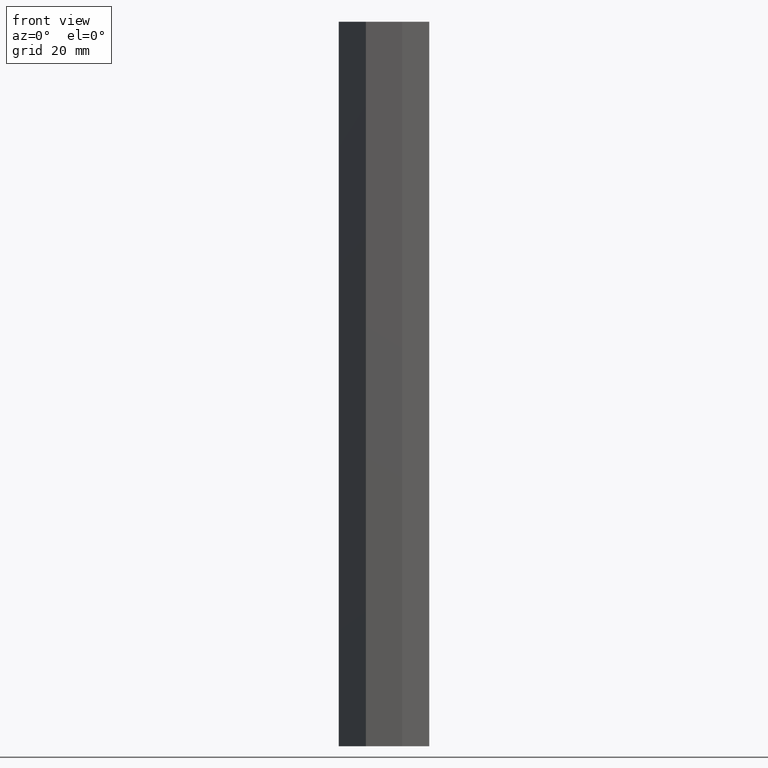
[diagram: clean part render]
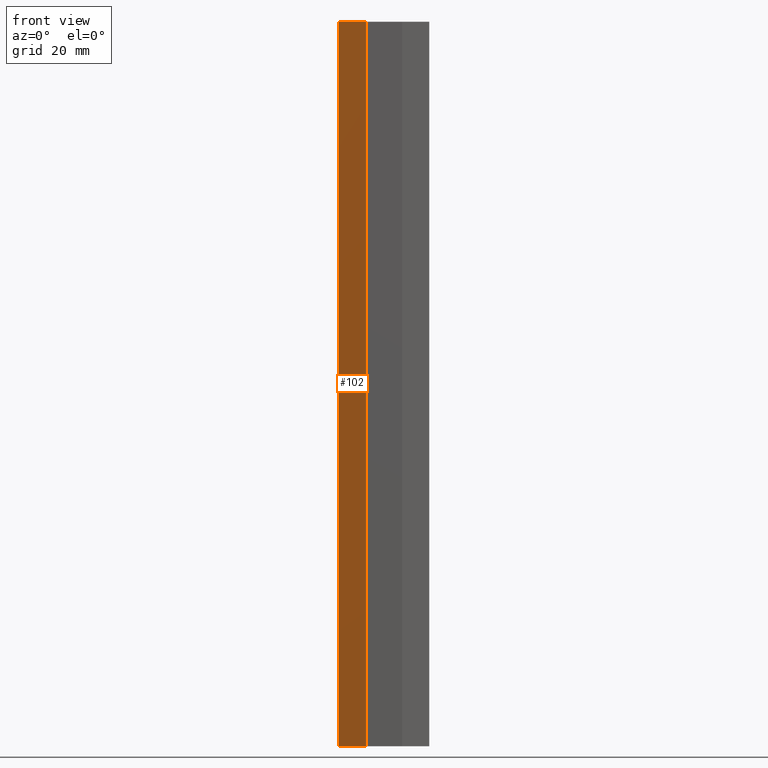
[diagram: same view with one face highlighted and labeled with its STEP entity id]
A machine part, front view. The second image highlights one B-rep face of the part: STEP entity #102.
In plain terms, the highlighted planar face has unit normal (-0.8575, -0.5145, 0).
Its self-contained STEP definition (entity closure, byte-faithful):
#16=FACE_OUTER_BOUND('',#22,.T.);
#22=EDGE_LOOP('',(#75,#76,#77,#78));
#30=LINE('',#168,#42);
#31=LINE('',#171,#43);
#32=LINE('',#173,#44);
#33=LINE('',#174,#45);
#42=VECTOR('',#140,10.);
#43=VECTOR('',#143,10.);
#44=VECTOR('',#144,10.);
#45=VECTOR('',#145,10.);
#52=VERTEX_POINT('',#162);
#54=VERTEX_POINT('',#166);
#55=VERTEX_POINT('',#170);
#56=VERTEX_POINT('',#172);
#62=EDGE_CURVE('',#52,#54,#30,.T.);
#63=EDGE_CURVE('',#52,#55,#31,.T.);
#64=EDGE_CURVE('',#56,#54,#32,.T.);
#65=EDGE_CURVE('',#55,#56,#33,.T.);
#75=ORIENTED_EDGE('',*,*,#63,.F.);
#76=ORIENTED_EDGE('',*,*,#62,.T.);
#77=ORIENTED_EDGE('',*,*,#64,.F.);
#78=ORIENTED_EDGE('',*,*,#65,.F.);
#96=PLANE('',#128);
#102=ADVANCED_FACE('',(#16),#96,.T.);
#128=AXIS2_PLACEMENT_3D('',#169,#141,#142);
#140=DIRECTION('',(0.,0.,-1.));
#141=DIRECTION('center_axis',(-0.857492925712544,-0.514495755427527,0.));
#142=DIRECTION('ref_axis',(-0.514495755427527,0.857492925712544,0.));
#143=DIRECTION('',(0.514495755427527,-0.857492925712544,0.));
#144=DIRECTION('',(-0.514495755427527,0.857492925712544,0.));
#145=DIRECTION('',(0.,0.,-1.));
#162=CARTESIAN_POINT('',(-7.5,7.5,0.));
#166=CARTESIAN_POINT('',(-7.5,7.5,-120.));
#168=CARTESIAN_POINT('',(-7.5,7.5,0.));
#169=CARTESIAN_POINT('Origin',(-3.,-1.11022302462516E-15,0.));
#170=CARTESIAN_POINT('',(-3.,0.,0.));
#171=CARTESIAN_POINT('',(-7.5,7.5,0.));
#172=CARTESIAN_POINT('',(-3.,0.,-120.));
#173=CARTESIAN_POINT('',(-7.5,7.5,-120.));
#174=CARTESIAN_POINT('',(-3.,0.,0.));